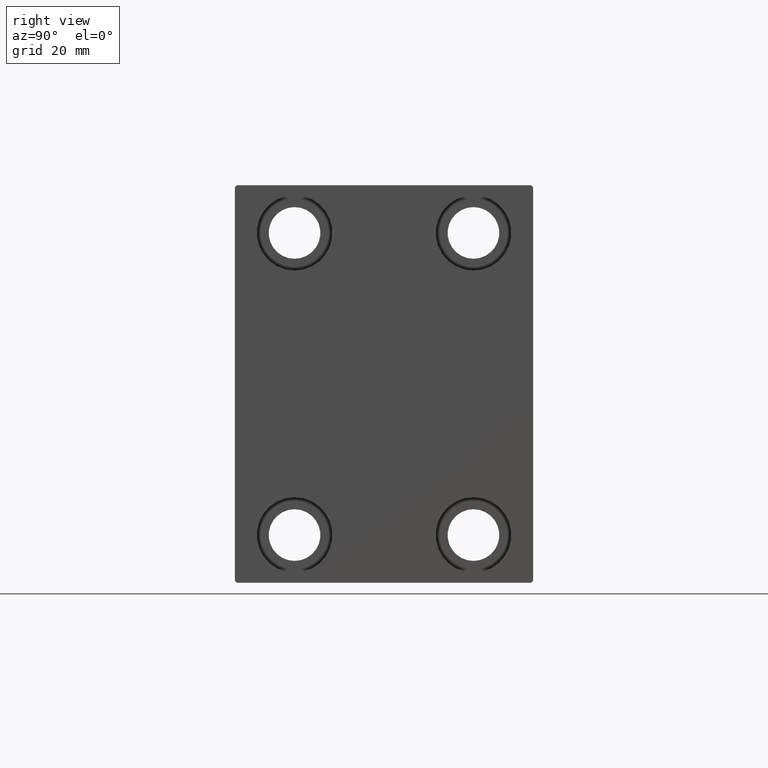
[diagram: clean part render]
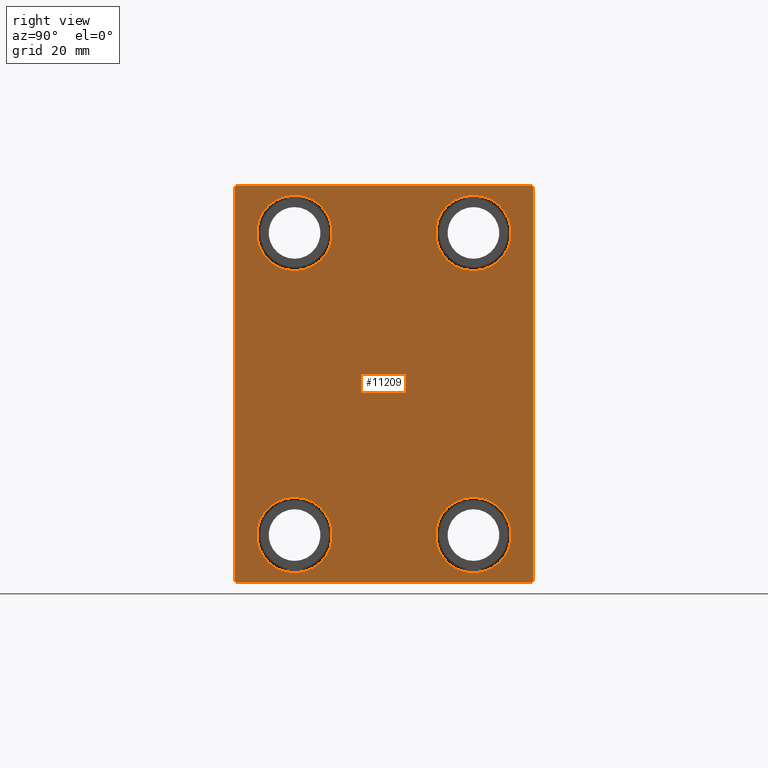
[diagram: same view with one face highlighted and labeled with its STEP entity id]
A machine part, right view. The second image highlights one B-rep face of the part: STEP entity #11209.
In plain terms, the highlighted planar face has unit normal (1, 0, 0).
Its self-contained STEP definition (entity closure, byte-faithful):
#976 = EDGE_CURVE ( 'NONE', #5154, #24603, #13135, .T. ) ;
#1156 = ORIENTED_EDGE ( 'NONE', *, *, #11601, .T. ) ;
#1319 = CARTESIAN_POINT ( 'NONE',  ( 123.0000000000000000, -43.49999999999998579, 43.49999999999998579 ) ) ;
#1524 = CARTESIAN_POINT ( 'NONE',  ( 123.0000000000000000, 43.50000000000000711, -43.50000000000000711 ) ) ;
#1595 = VERTEX_POINT ( 'NONE', #9189 ) ;
#1745 = DIRECTION ( 'NONE',  ( 0.000000000000000000, 0.000000000000000000, 1.000000000000000000 ) ) ;
#1898 = DIRECTION ( 'NONE',  ( -0.000000000000000000, 0.7071067811865474617, -0.7071067811865474617 ) ) ;
#2342 = CARTESIAN_POINT ( 'NONE',  ( 123.0000000000000000, 37.00000000000000711, -50.00000000000000000 ) ) ;
#2573 = AXIS2_PLACEMENT_3D ( 'NONE', #15521, #35591, #29118 ) ;
#3354 = CARTESIAN_POINT ( 'NONE',  ( 123.0000000000000000, 0.000000000000000000, 0.000000000000000000 ) ) ;
#3544 = VERTEX_POINT ( 'NONE', #34862 ) ;
#3710 = VERTEX_POINT ( 'NONE', #42885 ) ;
#3711 = CARTESIAN_POINT ( 'NONE',  ( 123.0000000000000000, -22.49999999999999645, 47.49999999999999289 ) ) ;
#3908 = CARTESIAN_POINT ( 'NONE',  ( 123.0000000000000000, -37.00000000000003553, -50.00000000000000711 ) ) ;
#4013 = CIRCLE ( 'NONE', #38220, 9.500000000000001776 ) ;
#4018 = VERTEX_POINT ( 'NONE', #5353 ) ;
#4124 = VECTOR ( 'NONE', #9989, 999.9999999999998863 ) ;
#4509 = CIRCLE ( 'NONE', #20907, 9.500000000000001776 ) ;
#4533 = EDGE_CURVE ( 'NONE', #31994, #1595, #21792, .T. ) ;
#4869 = CARTESIAN_POINT ( 'NONE',  ( 123.0000000000000000, 22.50000000000000355, 37.99999999999999289 ) ) ;
#5036 = VECTOR ( 'NONE', #35664, 1000.000000000000114 ) ;
#5154 = VERTEX_POINT ( 'NONE', #3908 ) ;
#5353 = CARTESIAN_POINT ( 'NONE',  ( 123.0000000000000000, -37.50000000000000711, -49.50000000000003553 ) ) ;
#5657 = CIRCLE ( 'NONE', #43412, 9.500000000000001776 ) ;
#6492 = DIRECTION ( 'NONE',  ( 0.000000000000000000, 0.000000000000000000, -1.000000000000000000 ) ) ;
#6662 = CARTESIAN_POINT ( 'NONE',  ( 123.0000000000000000, 22.49999999999999645, -47.49999999999999289 ) ) ;
#7389 = CARTESIAN_POINT ( 'NONE',  ( 123.0000000000000000, 22.50000000000000355, 28.49999999999998934 ) ) ;
#7545 = EDGE_LOOP ( 'NONE', ( #39071, #38173 ) ) ;
#7900 = VERTEX_POINT ( 'NONE', #17148 ) ;
#7950 = AXIS2_PLACEMENT_3D ( 'NONE', #11553, #39433, #1745 ) ;
#8647 = DIRECTION ( 'NONE',  ( 0.000000000000000000, 0.000000000000000000, -1.000000000000000000 ) ) ;
#8858 = CARTESIAN_POINT ( 'NONE',  ( 123.0000000000000000, -37.50000000000000711, 49.99999999999999289 ) ) ;
#9156 = AXIS2_PLACEMENT_3D ( 'NONE', #3354, #9614, #6492 ) ;
#9189 = CARTESIAN_POINT ( 'NONE',  ( 123.0000000000000000, -22.50000000000000711, -47.49999999999999289 ) ) ;
#9614 = DIRECTION ( 'NONE',  ( 1.000000000000000000, 0.000000000000000000, 0.000000000000000000 ) ) ;
#9989 = DIRECTION ( 'NONE',  ( -0.000000000000000000, -0.7071067811865425767, 0.7071067811865525687 ) ) ;
#10594 = EDGE_CURVE ( 'NONE', #3710, #34921, #40545, .T. ) ;
#11209 = ADVANCED_FACE ( 'NONE', ( #36601, #30557, #30136, #16096, #23653 ), #33271, .T. ) ;
#11553 = CARTESIAN_POINT ( 'NONE',  ( 123.0000000000000000, 22.49999999999999645, -37.99999999999999289 ) ) ;
#11586 = AXIS2_PLACEMENT_3D ( 'NONE', #42043, #21542, #28222 ) ;
#11601 = EDGE_CURVE ( 'NONE', #12593, #4018, #35396, .T. ) ;
#12264 = ORIENTED_EDGE ( 'NONE', *, *, #4533, .T. ) ;
#12558 = AXIS2_PLACEMENT_3D ( 'NONE', #34846, #24563, #14556 ) ;
#12593 = VERTEX_POINT ( 'NONE', #20844 ) ;
#13135 = LINE ( 'NONE', #40126, #43090 ) ;
#13471 = EDGE_CURVE ( 'NONE', #19223, #36312, #5657, .T. ) ;
#13504 = ORIENTED_EDGE ( 'NONE', *, *, #23216, .T. ) ;
#14426 = EDGE_LOOP ( 'NONE', ( #19459, #13504, #1156, #24272, #15775, #21722, #37844, #33632 ) ) ;
#14556 = DIRECTION ( 'NONE',  ( 0.000000000000000000, 0.000000000000000000, 1.000000000000000000 ) ) ;
#15521 = CARTESIAN_POINT ( 'NONE',  ( 123.0000000000000000, -22.50000000000000711, -37.99999999999999289 ) ) ;
#15584 = DIRECTION ( 'NONE',  ( 0.000000000000000000, 0.000000000000000000, 1.000000000000000000 ) ) ;
#15760 = EDGE_LOOP ( 'NONE', ( #21354, #36169 ) ) ;
#15775 = ORIENTED_EDGE ( 'NONE', *, *, #976, .T. ) ;
#15891 = ORIENTED_EDGE ( 'NONE', *, *, #28457, .T. ) ;
#15986 = CARTESIAN_POINT ( 'NONE',  ( 123.0000000000000000, 22.49999999999999645, -28.49999999999998934 ) ) ;
#16096 = FACE_BOUND ( 'NONE', #25166, .T. ) ;
#16943 = DIRECTION ( 'NONE',  ( 0.000000000000000000, -1.000000000000000000, -1.850371707708594316E-16 ) ) ;
#17148 = CARTESIAN_POINT ( 'NONE',  ( 123.0000000000000000, -22.49999999999999645, 28.49999999999998934 ) ) ;
#17176 = VERTEX_POINT ( 'NONE', #7389 ) ;
#18479 = DIRECTION ( 'NONE',  ( -0.000000000000000000, 0.7071067811865474617, 0.7071067811865474617 ) ) ;
#18637 = LINE ( 'NONE', #32676, #28936 ) ;
#19223 = VERTEX_POINT ( 'NONE', #6662 ) ;
#19329 = LINE ( 'NONE', #32923, #24177 ) ;
#19333 = EDGE_CURVE ( 'NONE', #32439, #7900, #32749, .T. ) ;
#19459 = ORIENTED_EDGE ( 'NONE', *, *, #30017, .T. ) ;
#20043 = EDGE_CURVE ( 'NONE', #3544, #3710, #19329, .T. ) ;
#20482 = DIRECTION ( 'NONE',  ( 0.000000000000000000, 1.000000000000000000, 9.251858538542970348E-17 ) ) ;
#20844 = CARTESIAN_POINT ( 'NONE',  ( 123.0000000000000000, -37.50000000000000711, 49.49999999999997868 ) ) ;
#20907 = AXIS2_PLACEMENT_3D ( 'NONE', #4869, #32535, #15584 ) ;
#21354 = ORIENTED_EDGE ( 'NONE', *, *, #38467, .T. ) ;
#21542 = DIRECTION ( 'NONE',  ( -1.000000000000000000, -0.000000000000000000, -0.000000000000000000 ) ) ;
#21722 = ORIENTED_EDGE ( 'NONE', *, *, #25798, .T. ) ;
#21792 = CIRCLE ( 'NONE', #2573, 9.500000000000001776 ) ;
#21813 = CARTESIAN_POINT ( 'NONE',  ( 123.0000000000000000, -22.49999999999999645, 37.99999999999999289 ) ) ;
#21875 = CARTESIAN_POINT ( 'NONE',  ( 123.0000000000000000, 22.50000000000000355, 37.99999999999999289 ) ) ;
#23216 = EDGE_CURVE ( 'NONE', #35411, #12593, #35209, .T. ) ;
#23426 = LINE ( 'NONE', #43280, #33027 ) ;
#23653 = FACE_OUTER_BOUND ( 'NONE', #14426, .T. ) ;
#24177 = VECTOR ( 'NONE', #36691, 1000.000000000000000 ) ;
#24272 = ORIENTED_EDGE ( 'NONE', *, *, #39371, .T. ) ;
#24342 = CARTESIAN_POINT ( 'NONE',  ( 123.0000000000000000, 22.49999999999999645, -37.99999999999999289 ) ) ;
#24373 = ORIENTED_EDGE ( 'NONE', *, *, #30278, .T. ) ;
#24563 = DIRECTION ( 'NONE',  ( -1.000000000000000000, -0.000000000000000000, -0.000000000000000000 ) ) ;
#24603 = VERTEX_POINT ( 'NONE', #2342 ) ;
#25139 = DIRECTION ( 'NONE',  ( -1.000000000000000000, -0.000000000000000000, -0.000000000000000000 ) ) ;
#25166 = EDGE_LOOP ( 'NONE', ( #15891, #12264 ) ) ;
#25372 = LINE ( 'NONE', #1524, #37866 ) ;
#25798 = EDGE_CURVE ( 'NONE', #24603, #3544, #25372, .T. ) ;
#25865 = EDGE_CURVE ( 'NONE', #36312, #19223, #42137, .T. ) ;
#27180 = CARTESIAN_POINT ( 'NONE',  ( 123.0000000000000000, 36.99999999999999289, 50.00000000000000711 ) ) ;
#27469 = DIRECTION ( 'NONE',  ( -1.000000000000000000, -0.000000000000000000, -0.000000000000000000 ) ) ;
#28222 = DIRECTION ( 'NONE',  ( 0.000000000000000000, 0.000000000000000000, 1.000000000000000000 ) ) ;
#28457 = EDGE_CURVE ( 'NONE', #1595, #31994, #40093, .T. ) ;
#28797 = CARTESIAN_POINT ( 'NONE',  ( 123.0000000000000000, -22.50000000000000711, -28.49999999999998934 ) ) ;
#28936 = VECTOR ( 'NONE', #1898, 1000.000000000000114 ) ;
#29118 = DIRECTION ( 'NONE',  ( 0.000000000000000000, 0.000000000000000000, 1.000000000000000000 ) ) ;
#30017 = EDGE_CURVE ( 'NONE', #34921, #35411, #23426, .T. ) ;
#30136 = FACE_BOUND ( 'NONE', #40177, .T. ) ;
#30278 = EDGE_CURVE ( 'NONE', #34010, #17176, #4509, .T. ) ;
#30557 = FACE_BOUND ( 'NONE', #15760, .T. ) ;
#31994 = VERTEX_POINT ( 'NONE', #28797 ) ;
#32439 = VERTEX_POINT ( 'NONE', #3711 ) ;
#32535 = DIRECTION ( 'NONE',  ( -1.000000000000000000, -0.000000000000000000, -0.000000000000000000 ) ) ;
#32676 = CARTESIAN_POINT ( 'NONE',  ( 123.0000000000000000, -43.50000000000002132, -43.50000000000002132 ) ) ;
#32749 = CIRCLE ( 'NONE', #44124, 9.500000000000001776 ) ;
#32923 = CARTESIAN_POINT ( 'NONE',  ( 123.0000000000000000, 37.50000000000000711, -50.00000000000000000 ) ) ;
#33027 = VECTOR ( 'NONE', #16943, 1000.000000000000000 ) ;
#33271 = PLANE ( 'NONE',  #9156 ) ;
#33632 = ORIENTED_EDGE ( 'NONE', *, *, #10594, .T. ) ;
#34010 = VERTEX_POINT ( 'NONE', #34803 ) ;
#34609 = DIRECTION ( 'NONE',  ( 0.000000000000000000, 0.000000000000000000, 1.000000000000000000 ) ) ;
#34803 = CARTESIAN_POINT ( 'NONE',  ( 123.0000000000000000, 22.50000000000000355, 47.49999999999999289 ) ) ;
#34846 = CARTESIAN_POINT ( 'NONE',  ( 123.0000000000000000, -22.49999999999999645, 37.99999999999999289 ) ) ;
#34862 = CARTESIAN_POINT ( 'NONE',  ( 123.0000000000000000, 37.50000000000000711, -49.50000000000000000 ) ) ;
#34921 = VERTEX_POINT ( 'NONE', #27180 ) ;
#35209 = LINE ( 'NONE', #1319, #5036 ) ;
#35396 = LINE ( 'NONE', #8858, #42607 ) ;
#35411 = VERTEX_POINT ( 'NONE', #40048 ) ;
#35591 = DIRECTION ( 'NONE',  ( -1.000000000000000000, -0.000000000000000000, -0.000000000000000000 ) ) ;
#35664 = DIRECTION ( 'NONE',  ( 0.000000000000000000, -0.7071067811865474617, -0.7071067811865474617 ) ) ;
#36169 = ORIENTED_EDGE ( 'NONE', *, *, #19333, .T. ) ;
#36312 = VERTEX_POINT ( 'NONE', #15986 ) ;
#36323 = CARTESIAN_POINT ( 'NONE',  ( 123.0000000000000000, 43.50000000000026290, 43.49999999999965894 ) ) ;
#36601 = FACE_BOUND ( 'NONE', #7545, .T. ) ;
#36691 = DIRECTION ( 'NONE',  ( 0.000000000000000000, -1.387778780781445676E-16, 1.000000000000000000 ) ) ;
#37844 = ORIENTED_EDGE ( 'NONE', *, *, #20043, .T. ) ;
#37866 = VECTOR ( 'NONE', #18479, 1000.000000000000114 ) ;
#38173 = ORIENTED_EDGE ( 'NONE', *, *, #25865, .T. ) ;
#38220 = AXIS2_PLACEMENT_3D ( 'NONE', #21875, #42825, #39041 ) ;
#38467 = EDGE_CURVE ( 'NONE', #7900, #32439, #42430, .T. ) ;
#38533 = DIRECTION ( 'NONE',  ( 0.000000000000000000, 0.000000000000000000, 1.000000000000000000 ) ) ;
#39041 = DIRECTION ( 'NONE',  ( 0.000000000000000000, 0.000000000000000000, 1.000000000000000000 ) ) ;
#39071 = ORIENTED_EDGE ( 'NONE', *, *, #13471, .T. ) ;
#39371 = EDGE_CURVE ( 'NONE', #4018, #5154, #18637, .T. ) ;
#39433 = DIRECTION ( 'NONE',  ( -1.000000000000000000, -0.000000000000000000, -0.000000000000000000 ) ) ;
#39947 = ORIENTED_EDGE ( 'NONE', *, *, #41037, .T. ) ;
#40048 = CARTESIAN_POINT ( 'NONE',  ( 123.0000000000000000, -36.99999999999999289, 49.99999999999999289 ) ) ;
#40093 = CIRCLE ( 'NONE', #11586, 9.500000000000001776 ) ;
#40126 = CARTESIAN_POINT ( 'NONE',  ( 123.0000000000000000, -37.50000000000000711, -50.00000000000000711 ) ) ;
#40177 = EDGE_LOOP ( 'NONE', ( #39947, #24373 ) ) ;
#40545 = LINE ( 'NONE', #36323, #4124 ) ;
#41037 = EDGE_CURVE ( 'NONE', #17176, #34010, #4013, .T. ) ;
#42043 = CARTESIAN_POINT ( 'NONE',  ( 123.0000000000000000, -22.50000000000000711, -37.99999999999999289 ) ) ;
#42137 = CIRCLE ( 'NONE', #7950, 9.500000000000001776 ) ;
#42430 = CIRCLE ( 'NONE', #12558, 9.500000000000001776 ) ;
#42607 = VECTOR ( 'NONE', #8647, 1000.000000000000000 ) ;
#42825 = DIRECTION ( 'NONE',  ( -1.000000000000000000, -0.000000000000000000, -0.000000000000000000 ) ) ;
#42885 = CARTESIAN_POINT ( 'NONE',  ( 123.0000000000000000, 37.49999999999999289, 49.50000000000000000 ) ) ;
#43090 = VECTOR ( 'NONE', #20482, 1000.000000000000000 ) ;
#43280 = CARTESIAN_POINT ( 'NONE',  ( 123.0000000000000000, 37.49999999999999289, 50.00000000000000711 ) ) ;
#43412 = AXIS2_PLACEMENT_3D ( 'NONE', #24342, #27469, #34609 ) ;
#44124 = AXIS2_PLACEMENT_3D ( 'NONE', #21813, #25139, #38533 ) ;